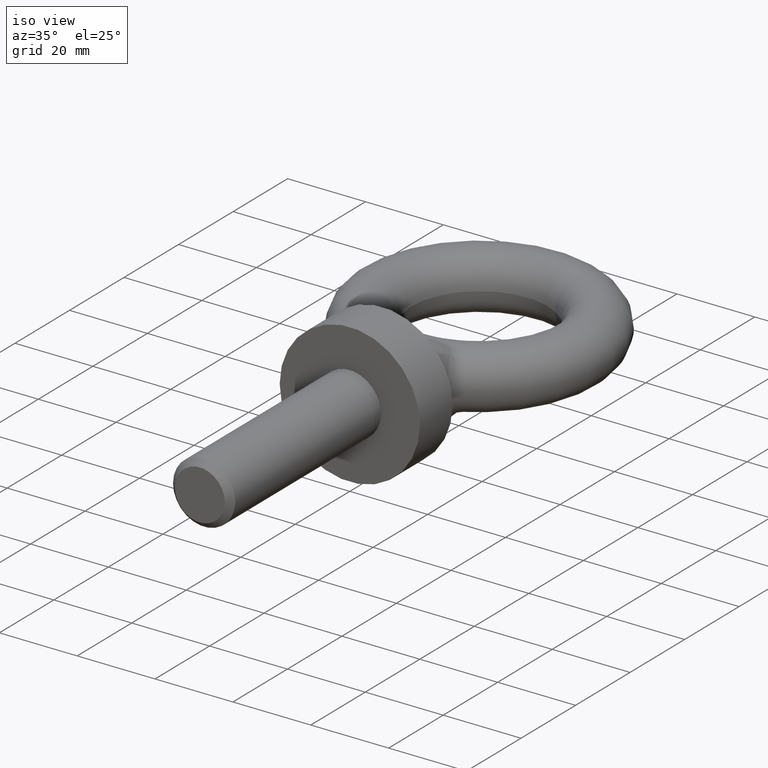
[diagram: clean part render]
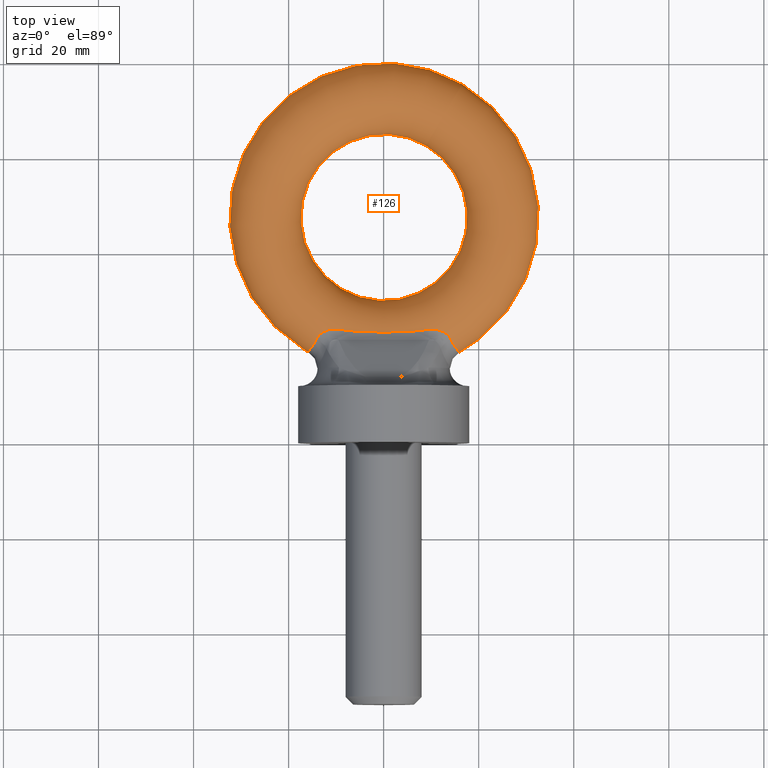
[diagram: tour spotlight — one face highlighted and labeled with its STEP entity id]
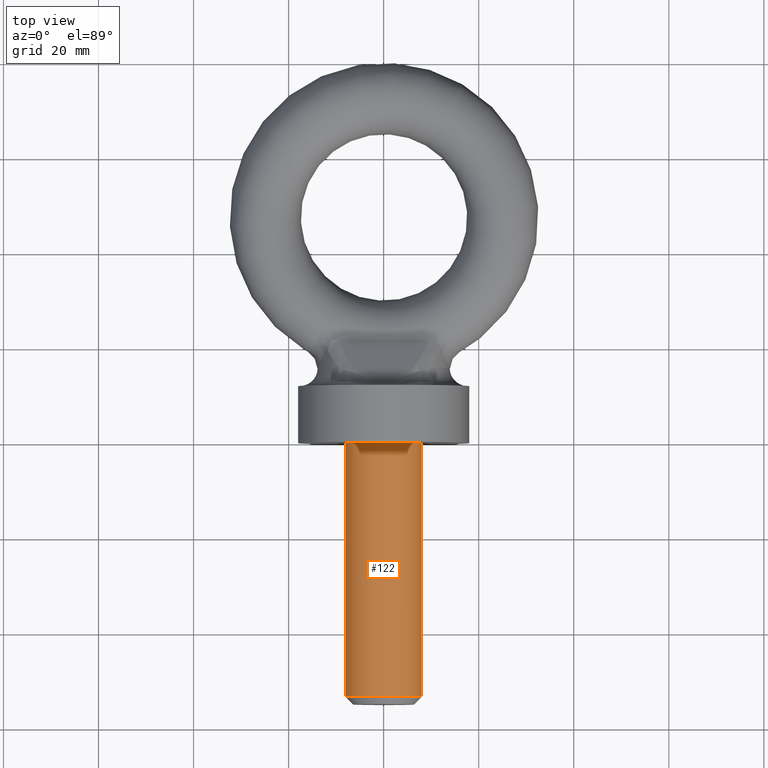
[diagram: tour spotlight — one face highlighted and labeled with its STEP entity id]
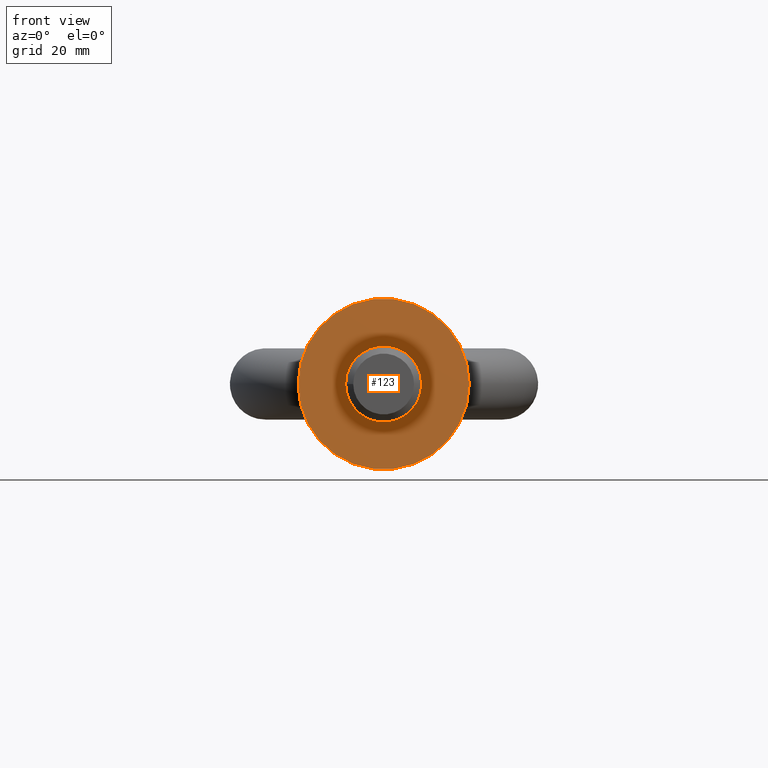
[diagram: tour spotlight — one face highlighted and labeled with its STEP entity id]
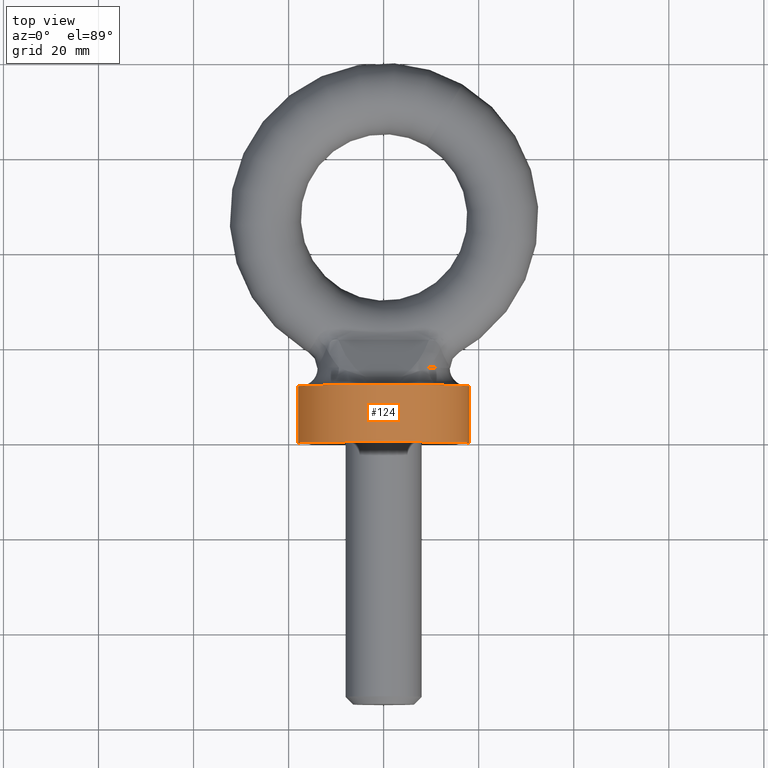
[diagram: tour spotlight — one face highlighted and labeled with its STEP entity id]
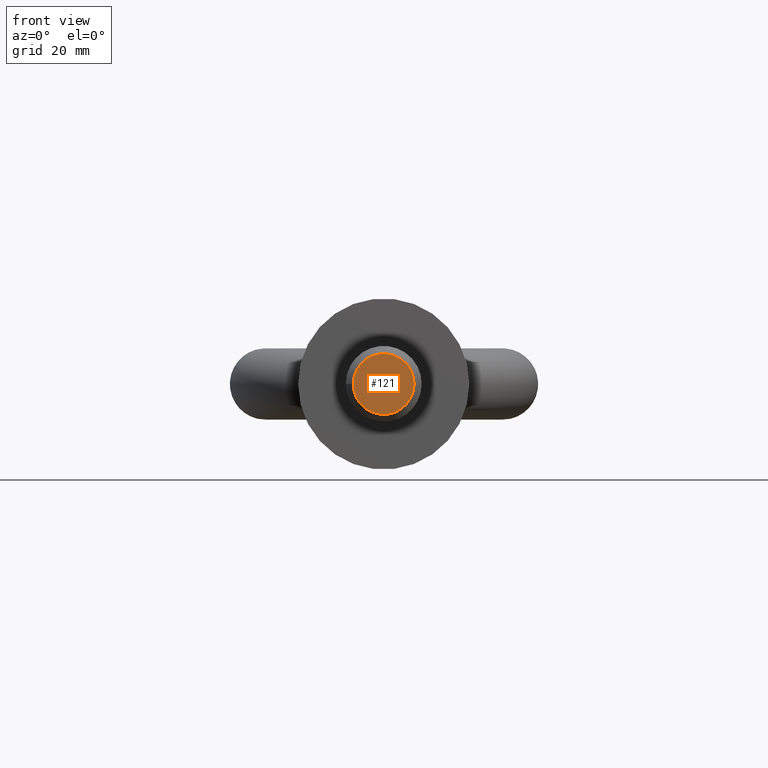
[diagram: tour spotlight — one face highlighted and labeled with its STEP entity id]
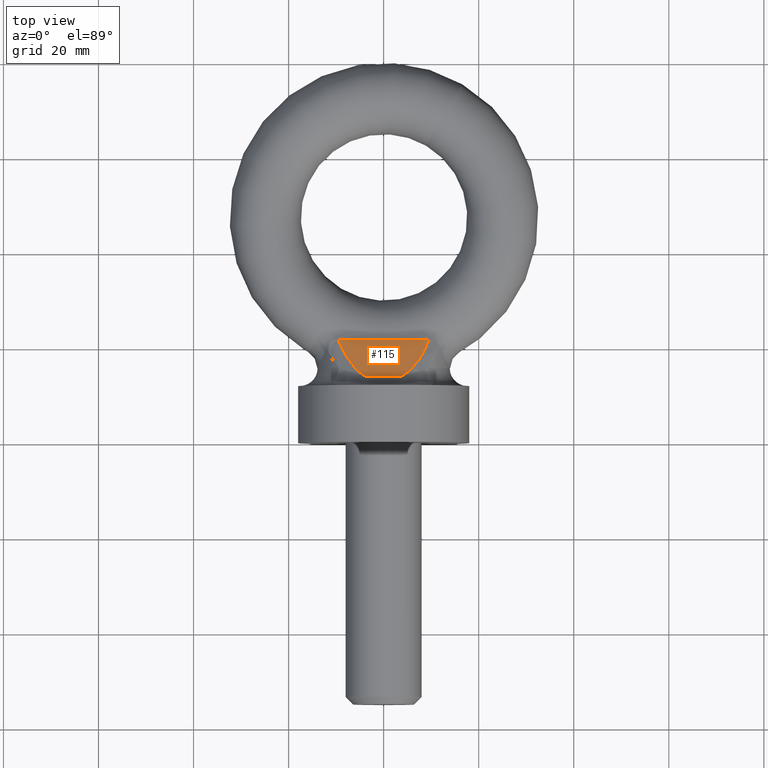
[diagram: tour spotlight — one face highlighted and labeled with its STEP entity id]
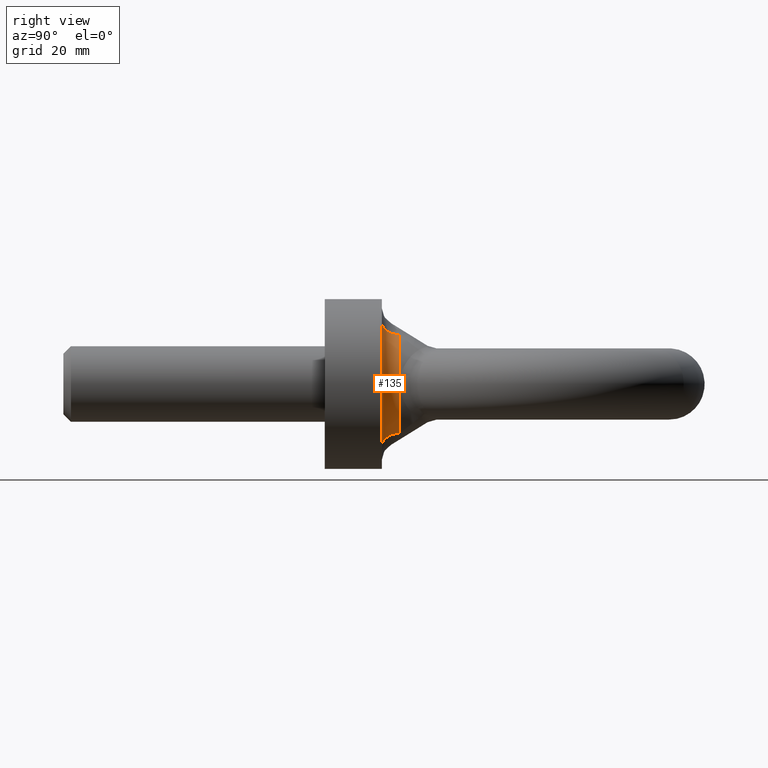
[diagram: tour spotlight — one face highlighted and labeled with its STEP entity id]
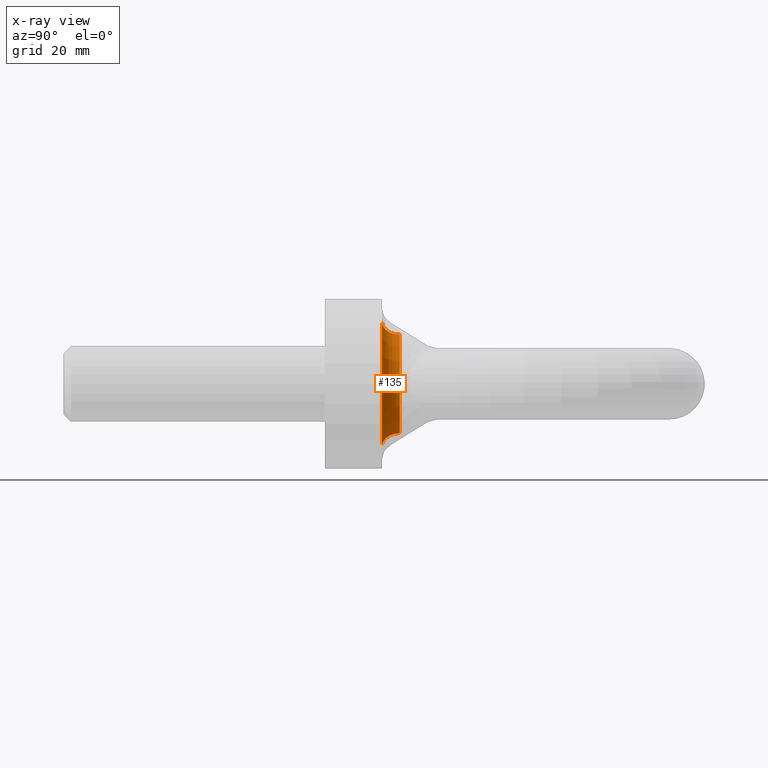
[diagram: x-ray of the same camera — body ghosted, this tour face saturated]
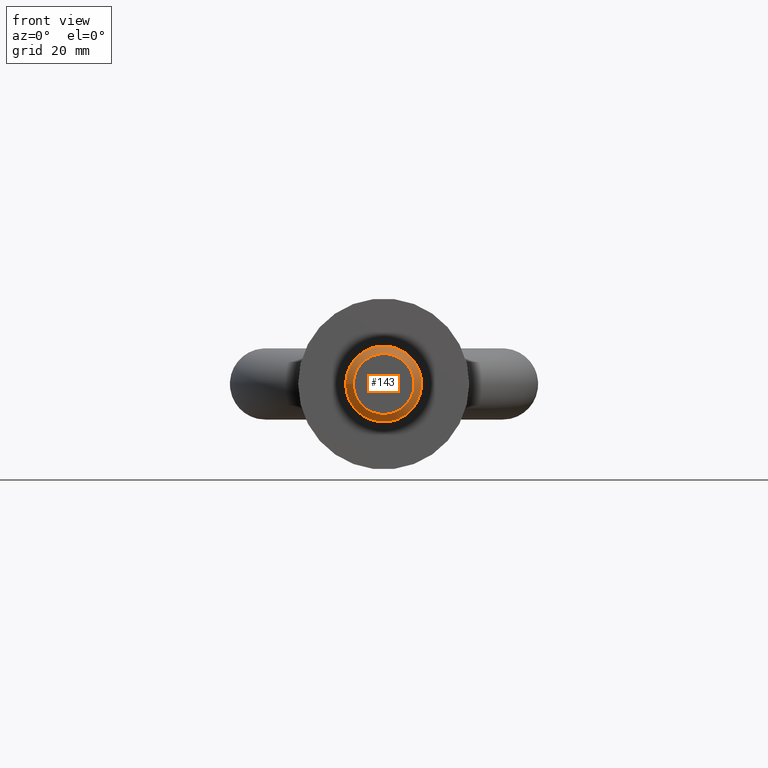
[diagram: tour spotlight — one face highlighted and labeled with its STEP entity id]
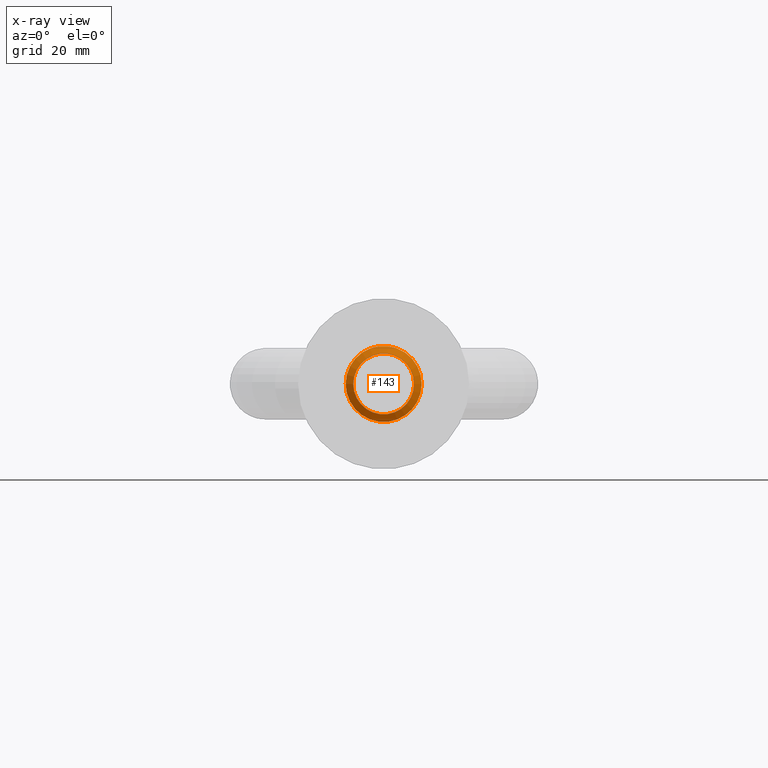
[diagram: x-ray of the same camera — body ghosted, this tour face saturated]
A machine part: a face-by-face anatomy tour. The part has 31 B-rep faces; the first image is the clean iso view, then the 8 largest visible faces are spotlighted one at a time (largest first), each with its STEP entity span.

Face 1 — top view, entity #126. In plain terms, the highlighted toroidal blend (fillet) surface has major radius 25 mm and minor (blend) radius 7.5 mm.
Definition (entity closure, byte-faithful):
#71=TOROIDAL_SURFACE('',#516,25.,7.5);
#126=ADVANCED_FACE('',(#159),#71,.T.);
#159=FACE_OUTER_BOUND('',#193,.T.);
#193=EDGE_LOOP('',(#309,#310,#311,#312,#313,#314,#315,#316));
#228=B_SPLINE_CURVE_WITH_KNOTS('',3,(#888,#889,#890,#891,#892,#893,#894,
#895,#896,#897),.UNSPECIFIED.,.F.,.F.,(4,2,2,2,4),(0.,0.25,0.5,0.75,1.),
 .UNSPECIFIED.);
#229=B_SPLINE_CURVE_WITH_KNOTS('',3,(#900,#901,#902,#903,#904,#905),
 .UNSPECIFIED.,.F.,.F.,(4,2,4),(0.,0.5,1.),.UNSPECIFIED.);
#230=B_SPLINE_CURVE_WITH_KNOTS('',3,(#907,#908,#909,#910,#911,#912),
 .UNSPECIFIED.,.F.,.F.,(4,2,4),(0.,0.5,1.),.UNSPECIFIED.);
#231=B_SPLINE_CURVE_WITH_KNOTS('',3,(#914,#915,#916,#917,#918,#919),
 .UNSPECIFIED.,.F.,.F.,(4,2,4),(0.,0.5,1.),.UNSPECIFIED.);
#232=B_SPLINE_CURVE_WITH_KNOTS('',3,(#921,#922,#923,#924,#925,#926,#927,
#928,#929,#930),.UNSPECIFIED.,.F.,.F.,(4,2,2,2,4),(0.,0.25,0.5,0.75,1.),
 .UNSPECIFIED.);
#233=B_SPLINE_CURVE_WITH_KNOTS('',3,(#932,#933,#934,#935,#936,#937),
 .UNSPECIFIED.,.F.,.F.,(4,2,4),(0.,0.5,1.),.UNSPECIFIED.);
#234=B_SPLINE_CURVE_WITH_KNOTS('',3,(#939,#940,#941,#942,#943,#944),
 .UNSPECIFIED.,.F.,.F.,(4,2,4),(0.,0.5,1.),.UNSPECIFIED.);
#235=B_SPLINE_CURVE_WITH_KNOTS('',3,(#946,#947,#948,#949,#950,#951),
 .UNSPECIFIED.,.F.,.F.,(4,2,4),(0.,0.5,1.),.UNSPECIFIED.);
#309=ORIENTED_EDGE('',*,*,#457,.T.);
#310=ORIENTED_EDGE('',*,*,#458,.T.);
#311=ORIENTED_EDGE('',*,*,#459,.T.);
#312=ORIENTED_EDGE('',*,*,#460,.T.);
#313=ORIENTED_EDGE('',*,*,#461,.T.);
#314=ORIENTED_EDGE('',*,*,#462,.T.);
#315=ORIENTED_EDGE('',*,*,#463,.T.);
#316=ORIENTED_EDGE('',*,*,#464,.T.);
#412=VERTEX_POINT('',#898);
#413=VERTEX_POINT('',#899);
#414=VERTEX_POINT('',#906);
#415=VERTEX_POINT('',#913);
#416=VERTEX_POINT('',#920);
#417=VERTEX_POINT('',#931);
#418=VERTEX_POINT('',#938);
#419=VERTEX_POINT('',#945);
#457=EDGE_CURVE('',#412,#413,#228,.T.);
#458=EDGE_CURVE('',#413,#414,#229,.T.);
#459=EDGE_CURVE('',#414,#415,#230,.T.);
#460=EDGE_CURVE('',#415,#416,#231,.T.);
#461=EDGE_CURVE('',#416,#417,#232,.T.);
#462=EDGE_CURVE('',#417,#418,#233,.T.);
#463=EDGE_CURVE('',#418,#419,#234,.T.);
#464=EDGE_CURVE('',#419,#412,#235,.T.);
#516=AXIS2_PLACEMENT_3D('',#952,#596,#597);
#596=DIRECTION('',(0.,0.,-1.));
#597=DIRECTION('',(-1.,0.,0.));
#888=CARTESIAN_POINT('',(14.1741981581779,21.709147065367,6.08171539126332));
#889=CARTESIAN_POINT('',(14.5745700498036,20.8251840573748,5.38336660200797));
#890=CARTESIAN_POINT('',(15.0470120869435,20.1871264750595,4.46115483519046));
#891=CARTESIAN_POINT('',(15.7196351807305,19.33390725905,2.3627708228722));
#892=CARTESIAN_POINT('',(15.9231731267235,19.1198969437814,1.17843229862993));
#893=CARTESIAN_POINT('',(15.9217322689945,19.1215040983683,-1.1917576663875));
#894=CARTESIAN_POINT('',(15.7175340120673,19.3363814928695,-2.37096689962735));
#895=CARTESIAN_POINT('',(15.0458441147134,20.1888000631012,-4.46314949314594));
#896=CARTESIAN_POINT('',(14.5749269617328,20.8243960476541,-5.382744058271));
#897=CARTESIAN_POINT('',(14.1741981581779,21.709147065367,-6.08171539126333));
#898=CARTESIAN_POINT('',(14.1741981581779,21.709147065367,6.08171539126332));
#899=CARTESIAN_POINT('',(14.1741981581779,21.709147065367,-6.08171539126333));
#900=CARTESIAN_POINT('',(14.1741981581779,21.709147065367,-6.08171539126333));
#901=CARTESIAN_POINT('',(13.8462006308091,22.4333179848831,-6.65382517446191));
#902=CARTESIAN_POINT('',(13.1561183968329,23.0876216519404,-7.04429471258201));
#903=CARTESIAN_POINT('',(11.4182521166751,23.8610765791052,-7.44129476190509));
#904=CARTESIAN_POINT('',(10.4128731674532,23.9553079612752,-7.4713744211244));
#905=CARTESIAN_POINT('',(9.44702474323144,23.8182976500273,-7.48553681631403));
#906=CARTESIAN_POINT('',(9.44702474323144,23.8182976500273,-7.48553681631403));
#907=CARTESIAN_POINT('',(9.44702474323144,23.8182976500273,-7.48553681631403));
#908=CARTESIAN_POINT('',(6.31566035846718,23.3740983344537,-7.53145253019585));
#909=CARTESIAN_POINT('',(3.15586701214751,23.273978392612,-7.45883713321665));
#910=CARTESIAN_POINT('',(-3.15590276835225,23.2785932351067,-7.4606273441795));
#911=CARTESIAN_POINT('',(-6.30666454584796,23.3846936540592,-7.53332851438874));
#912=CARTESIAN_POINT('',(-9.4406866331087,23.841466150167,-7.48306399448596));
#913=CARTESIAN_POINT('',(-9.4406866331087,23.841466150167,-7.48306399448595));
#914=CARTESIAN_POINT('',(-9.4406866331087,23.841466150167,-7.48306399448595));
#915=CARTESIAN_POINT('',(-10.4077832661947,23.9824170212115,-7.46755336737223));
#916=CARTESIAN_POINT('',(-11.4072264593007,23.8962099048915,-7.43575781001841));
#917=CARTESIAN_POINT('',(-13.1590486105127,23.1308894548663,-7.02833460287979));
#918=CARTESIAN_POINT('',(-13.8490616498596,22.4827055216511,-6.63286916154929));
#919=CARTESIAN_POINT('',(-14.1781571430811,21.7604461682516,-6.0543394285941));
#920=CARTESIAN_POINT('',(-14.1781571430811,21.7604461682516,-6.0543394285941));
#921=CARTESIAN_POINT('',(-14.1781571430811,21.7604461682516,-6.0543394285941));
#922=CARTESIAN_POINT('',(-14.5760395292031,20.8872215849663,-5.35488654840614));
#923=CARTESIAN_POINT('',(-15.0421680936798,20.2574277526973,-4.43589780659233));
#924=CARTESIAN_POINT('',(-15.7059003870864,19.4148178093601,-2.34609958098598));
#925=CARTESIAN_POINT('',(-15.9058672497549,19.2041899834389,-1.16937034862699));
#926=CARTESIAN_POINT('',(-15.9043913944488,19.20583902931,1.18315396113015));
#927=CARTESIAN_POINT('',(-15.7035390620442,19.4176210580347,2.35523186050061));
#928=CARTESIAN_POINT('',(-15.0411782778047,20.2588797725948,4.4373081646159));
#929=CARTESIAN_POINT('',(-14.5764116819438,20.8864048287257,5.35423232666771));
#930=CARTESIAN_POINT('',(-14.1781571430811,21.7604461682516,6.05433942859409));
#931=CARTESIAN_POINT('',(-14.1781571430811,21.7604461682516,6.05433942859409));
#932=CARTESIAN_POINT('',(-14.1781571430811,21.7604461682516,6.05433942859409));
#933=CARTESIAN_POINT('',(-13.8495981226209,22.4815281355193,6.6319260752726));
#934=CARTESIAN_POINT('',(-13.156797777666,23.1313686935583,7.02854297372453));
#935=CARTESIAN_POINT('',(-11.4134237119581,23.8940054498455,7.43463090366018));
#936=CARTESIAN_POINT('',(-10.4069983656833,23.9823026247727,7.46756595587553));
#937=CARTESIAN_POINT('',(-9.4406866331087,23.841466150167,7.48306399448595));
#938=CARTESIAN_POINT('',(-9.4406866331087,23.841466150167,7.48306399448595));
#939=CARTESIAN_POINT('',(-9.4406866331087,23.841466150167,7.48306399448595));
#940=CARTESIAN_POINT('',(-6.3119044736743,23.3854573547754,7.53324447463114));
#941=CARTESIAN_POINT('',(-3.15368082852669,23.2785402064312,7.46060678335677));
#942=CARTESIAN_POINT('',(3.15737732672285,23.2740287228629,7.45885664724795));
#943=CARTESIAN_POINT('',(6.31593149046603,23.3741367958506,7.5314485545425));
#944=CARTESIAN_POINT('',(9.44702474323144,23.8182976500273,7.48553681631403));
#945=CARTESIAN_POINT('',(9.44702474323144,23.8182976500273,7.48553681631403));
#946=CARTESIAN_POINT('',(9.44702474323144,23.8182976500273,7.48553681631403));
#947=CARTESIAN_POINT('',(10.41369411998,23.9554244173964,7.47136238336172));
#948=CARTESIAN_POINT('',(11.4116453768015,23.8635232005418,7.44249908977341));
#949=CARTESIAN_POINT('',(13.1588997284633,23.0868764870269,7.04396359807389));
#950=CARTESIAN_POINT('',(13.8456491240928,22.434535631641,6.65478714021328));
#951=CARTESIAN_POINT('',(14.1741981581779,21.709147065367,6.08171539126332));
#952=CARTESIAN_POINT('',(0.0837289890841773,47.5,0.));

Face 2 — top view, entity #122. In plain terms, the highlighted cylindrical surface (bore or boss wall) has radius 8 mm, axis along (0, 1, 0).
Definition (entity closure, byte-faithful):
#74=FACE_BOUND('',#185,.T.);
#75=FACE_BOUND('',#186,.T.);
#122=ADVANCED_FACE('',(#74,#75),#146,.T.);
#146=CYLINDRICAL_SURFACE('',#508,8.);
#185=EDGE_LOOP('',(#294));
#186=EDGE_LOOP('',(#295));
#239=CIRCLE('',#506,8.);
#240=CIRCLE('',#507,7.99999999999999);
#294=ORIENTED_EDGE('',*,*,#445,.T.);
#295=ORIENTED_EDGE('',*,*,#446,.F.);
#400=VERTEX_POINT('',#849);
#401=VERTEX_POINT('',#851);
#445=EDGE_CURVE('',#400,#400,#239,.T.);
#446=EDGE_CURVE('',#401,#401,#240,.T.);
#506=AXIS2_PLACEMENT_3D('',#848,#574,#575);
#507=AXIS2_PLACEMENT_3D('',#850,#576,#577);
#508=AXIS2_PLACEMENT_3D('',#852,#578,#579);
#574=DIRECTION('',(2.18673743221666E-18,1.,0.));
#575=DIRECTION('',(-1.,0.,0.));
#576=DIRECTION('',(2.18673743221666E-18,1.,0.));
#577=DIRECTION('',(-1.,2.18673743221666E-18,0.));
#578=DIRECTION('',(2.18673743221666E-18,1.,0.));
#579=DIRECTION('',(-1.,0.,0.));
#848=CARTESIAN_POINT('',(-1.65973371105244E-16,-53.4,0.));
#849=CARTESIAN_POINT('',(-8.,-53.4,0.));
#850=CARTESIAN_POINT('',(-4.92015922248747E-17,0.,0.));
#851=CARTESIAN_POINT('',(-7.99999999999999,1.74938994577332E-17,0.));
#852=CARTESIAN_POINT('',(-1.69472150996791E-16,-55.,0.));

Face 3 — front view, entity #123. In plain terms, the highlighted planar face has unit normal (0, 1, 0).
Definition (entity closure, byte-faithful):
#76=FACE_BOUND('',#187,.T.);
#77=FACE_BOUND('',#188,.T.);
#103=PLANE('',#510);
#123=ADVANCED_FACE('',(#76,#77),#103,.F.);
#187=EDGE_LOOP('',(#296));
#188=EDGE_LOOP('',(#297));
#240=CIRCLE('',#507,7.99999999999999);
#241=CIRCLE('',#509,18.);
#296=ORIENTED_EDGE('',*,*,#447,.F.);
#297=ORIENTED_EDGE('',*,*,#446,.T.);
#401=VERTEX_POINT('',#851);
#402=VERTEX_POINT('',#854);
#446=EDGE_CURVE('',#401,#401,#240,.T.);
#447=EDGE_CURVE('',#402,#402,#241,.T.);
#507=AXIS2_PLACEMENT_3D('',#850,#576,#577);
#509=AXIS2_PLACEMENT_3D('',#853,#580,#581);
#510=AXIS2_PLACEMENT_3D('',#855,#582,#583);
#576=DIRECTION('',(2.18673743221666E-18,1.,0.));
#577=DIRECTION('',(-1.,2.18673743221666E-18,0.));
#580=DIRECTION('',(2.18673743221666E-18,1.,0.));
#581=DIRECTION('',(-1.,2.18673743221666E-18,0.));
#582=DIRECTION('',(2.18673743221666E-18,1.,0.));
#583=DIRECTION('',(-1.,2.18673743221666E-18,0.));
#850=CARTESIAN_POINT('',(-4.92015922248747E-17,0.,0.));
#851=CARTESIAN_POINT('',(-7.99999999999999,1.74938994577332E-17,0.));
#853=CARTESIAN_POINT('',(-4.92015922248747E-17,0.,0.));
#854=CARTESIAN_POINT('',(-18.,3.93612737798998E-17,0.));
#855=CARTESIAN_POINT('',(7.99999999999999,6.84489426692128E-16,0.));

Face 4 — top view, entity #124. In plain terms, the highlighted cylindrical surface (bore or boss wall) has radius 18 mm, axis along (0, 1, 0).
Definition (entity closure, byte-faithful):
#78=FACE_BOUND('',#189,.T.);
#79=FACE_BOUND('',#190,.T.);
#124=ADVANCED_FACE('',(#78,#79),#147,.T.);
#147=CYLINDRICAL_SURFACE('',#512,18.);
#189=EDGE_LOOP('',(#298));
#190=EDGE_LOOP('',(#299));
#241=CIRCLE('',#509,18.);
#242=CIRCLE('',#511,18.);
#298=ORIENTED_EDGE('',*,*,#448,.F.);
#299=ORIENTED_EDGE('',*,*,#447,.T.);
#402=VERTEX_POINT('',#854);
#403=VERTEX_POINT('',#857);
#447=EDGE_CURVE('',#402,#402,#241,.T.);
#448=EDGE_CURVE('',#403,#403,#242,.T.);
#509=AXIS2_PLACEMENT_3D('',#853,#580,#581);
#511=AXIS2_PLACEMENT_3D('',#856,#584,#585);
#512=AXIS2_PLACEMENT_3D('',#858,#586,#587);
#580=DIRECTION('',(2.18673743221666E-18,1.,0.));
#581=DIRECTION('',(-1.,2.18673743221666E-18,0.));
#584=DIRECTION('',(2.18673743221666E-18,1.,0.));
#585=DIRECTION('',(-1.,0.,0.));
#586=DIRECTION('',(2.18673743221666E-18,1.,0.));
#587=DIRECTION('',(-1.,0.,0.));
#853=CARTESIAN_POINT('',(-4.92015922248747E-17,0.,0.));
#854=CARTESIAN_POINT('',(-18.,3.93612737798998E-17,0.));
#856=CARTESIAN_POINT('',(-2.29607430382749E-17,12.,0.));
#857=CARTESIAN_POINT('',(-18.,12.,0.));
#858=CARTESIAN_POINT('',(-1.69472150996791E-16,-55.,0.));

Face 5 — front view, entity #121. In plain terms, the highlighted planar face has unit normal (0, 1, 0).
Definition (entity closure, byte-faithful):
#102=PLANE('',#505);
#121=ADVANCED_FACE('',(#158),#102,.F.);
#158=FACE_OUTER_BOUND('',#184,.T.);
#184=EDGE_LOOP('',(#293));
#238=CIRCLE('',#504,6.4);
#293=ORIENTED_EDGE('',*,*,#444,.T.);
#399=VERTEX_POINT('',#846);
#444=EDGE_CURVE('',#399,#399,#238,.T.);
#504=AXIS2_PLACEMENT_3D('',#845,#570,#571);
#505=AXIS2_PLACEMENT_3D('',#847,#572,#573);
#570=DIRECTION('',(-2.18673743221666E-18,-1.,0.));
#571=DIRECTION('',(-1.,0.,0.));
#572=DIRECTION('',(2.18673743221666E-18,1.,0.));
#573=DIRECTION('',(-1.,0.,0.));
#845=CARTESIAN_POINT('',(-1.69472150996791E-16,-55.,0.));
#846=CARTESIAN_POINT('',(-6.4,-55.,0.));
#847=CARTESIAN_POINT('',(1.912728238983E-35,-55.,0.));

Face 6 — top view, entity #115. In plain terms, the highlighted planar face has unit normal (0, 0.5264, 0.8503).
Definition (entity closure, byte-faithful):
#100=PLANE('',#500);
#105=LINE('',#680,#109);
#109=VECTOR('',#558,1.);
#115=ADVANCED_FACE('',(#152),#100,.T.);
#152=FACE_OUTER_BOUND('',#178,.T.);
#178=EDGE_LOOP('',(#269,#270,#271,#272));
#214=B_SPLINE_CURVE_WITH_KNOTS('',3,(#684,#685,#686,#687,#688,#689),
 .UNSPECIFIED.,.F.,.F.,(4,2,4),(0.,0.5,1.),.UNSPECIFIED.);
#269=ORIENTED_EDGE('',*,*,#428,.T.);
#270=ORIENTED_EDGE('',*,*,#429,.T.);
#271=ORIENTED_EDGE('',*,*,#430,.T.);
#272=ORIENTED_EDGE('',*,*,#431,.T.);
#391=VERTEX_POINT('',#678);
#392=VERTEX_POINT('',#679);
#393=VERTEX_POINT('',#681);
#394=VERTEX_POINT('',#683);
#428=EDGE_CURVE('',#391,#392,#485,.T.);
#429=EDGE_CURVE('',#392,#393,#105,.T.);
#430=EDGE_CURVE('',#393,#394,#486,.T.);
#431=EDGE_CURVE('',#394,#391,#214,.T.);
#485=ELLIPSE('',#498,20.8984583673097,11.);
#486=ELLIPSE('',#499,20.8984583673097,11.);
#498=AXIS2_PLACEMENT_3D('',#677,#556,#557);
#499=AXIS2_PLACEMENT_3D('',#682,#559,#560);
#500=AXIS2_PLACEMENT_3D('',#690,#561,#562);
#556=DIRECTION('',(-1.92592994438724E-34,0.526354614616296,0.850265146687862));
#557=DIRECTION('',(2.57183002353432E-18,0.850265146687862,-0.526354614616296));
#558=DIRECTION('',(1.,-2.18673743221666E-18,1.35369460089603E-18));
#559=DIRECTION('',(-1.92592994438724E-34,0.526354614616296,0.850265146687862));
#560=DIRECTION('',(2.57183002353432E-18,0.850265146687862,-0.526354614616296));
#561=DIRECTION('',(0.,0.526354614616296,0.850265146687862));
#562=DIRECTION('',(0.,-0.850265146687862,0.526354614616296));
#677=CARTESIAN_POINT('',(1.40296810839585E-17,30.4948689045127,2.55079544006359));
#678=CARTESIAN_POINT('',(-9.53474778514424,21.6339895750278,8.03610169164945));
#679=CARTESIAN_POINT('',(-3.72616664404324,13.7761701951889,12.900466069645));
#680=CARTESIAN_POINT('',(36.,13.7761701951889,12.900466069645));
#681=CARTESIAN_POINT('',(3.72616664404323,13.7761701951889,12.900466069645));
#682=CARTESIAN_POINT('',(1.40296810839585E-17,30.4948689045127,2.55079544006359));
#683=CARTESIAN_POINT('',(9.53261291634186,21.6279977375213,8.03981092439157));
#684=CARTESIAN_POINT('',(9.53261291634185,21.6279977375213,8.03981092439157));
#685=CARTESIAN_POINT('',(6.35467236471377,21.5206353919358,8.10627332880162));
#686=CARTESIAN_POINT('',(3.17685331787687,21.6928058066125,7.99969164352558));
#687=CARTESIAN_POINT('',(-3.17893643571902,21.6882392700004,8.00251854714259));
#688=CARTESIAN_POINT('',(-6.35690485638315,21.5167616867039,8.10867133680232));
#689=CARTESIAN_POINT('',(-9.53474778514425,21.6339895750278,8.03610169164945));
#690=CARTESIAN_POINT('',(36.,12.,14.));

Face 7 — right view, entity #135. An x-ray twin of the same camera follows (body ghosted, this face saturated) — the face is partly hidden behind the body. In plain terms, the highlighted toroidal blend (fillet) surface has major radius 17.75 mm and minor (blend) radius 3.75 mm.
Definition (entity closure, byte-faithful):
#72=TOROIDAL_SURFACE('',#527,17.75,3.75);
#135=ADVANCED_FACE('',(#168),#72,.F.);
#168=FACE_OUTER_BOUND('',#202,.T.);
#202=EDGE_LOOP('',(#349,#350,#351,#352));
#236=CIRCLE('',#491,14.);
#243=CIRCLE('',#513,17.75);
#253=CIRCLE('',#525,3.75);
#254=CIRCLE('',#526,3.75);
#349=ORIENTED_EDGE('',*,*,#473,.F.);
#350=ORIENTED_EDGE('',*,*,#449,.F.);
#351=ORIENTED_EDGE('',*,*,#474,.F.);
#352=ORIENTED_EDGE('',*,*,#421,.F.);
#384=VERTEX_POINT('',#643);
#385=VERTEX_POINT('',#645);
#404=VERTEX_POINT('',#860);
#405=VERTEX_POINT('',#861);
#421=EDGE_CURVE('',#384,#385,#236,.T.);
#449=EDGE_CURVE('',#404,#405,#243,.T.);
#473=EDGE_CURVE('',#405,#384,#253,.T.);
#474=EDGE_CURVE('',#385,#404,#254,.T.);
#491=AXIS2_PLACEMENT_3D('',#644,#542,#543);
#513=AXIS2_PLACEMENT_3D('',#859,#588,#589);
#525=AXIS2_PLACEMENT_3D('',#1129,#614,#615);
#526=AXIS2_PLACEMENT_3D('',#1130,#616,#617);
#527=AXIS2_PLACEMENT_3D('',#1131,#618,#619);
#542=DIRECTION('',(2.18673743221666E-18,1.,0.));
#543=DIRECTION('',(1.,0.,0.));
#588=DIRECTION('',(-2.18673743221666E-18,-1.,0.));
#589=DIRECTION('',(1.,0.,0.));
#614=DIRECTION('',(0.740932752331728,0.,-0.671579225797024));
#615=DIRECTION('',(-0.671579225797024,0.,-0.740932752331728));
#616=DIRECTION('',(0.740932752331729,0.,0.671579225797023));
#617=DIRECTION('',(0.671579225797023,0.,-0.740932752331729));
#618=DIRECTION('',(-2.18673743221666E-18,-1.,0.));
#619=DIRECTION('',(1.,0.,0.));
#643=CARTESIAN_POINT('',(9.40210916115834,15.75,10.3730585326442));
#644=CARTESIAN_POINT('',(-1.47604776674624E-17,15.75,0.));
#645=CARTESIAN_POINT('',(9.40210916115833,15.75,-10.3730585326442));
#859=CARTESIAN_POINT('',(-2.29607430382749E-17,12.,0.));
#860=CARTESIAN_POINT('',(11.9205312578972,12.,-13.1515563538882));
#861=CARTESIAN_POINT('',(11.9205312578972,12.,13.1515563538882));
#1129=CARTESIAN_POINT('',(11.9205312578972,15.75,13.1515563538882));
#1130=CARTESIAN_POINT('',(11.9205312578972,15.75,-13.1515563538882));
#1131=CARTESIAN_POINT('',(-1.47604776674624E-17,15.75,0.));

Face 8 — front view, entity #143. An x-ray twin of the same camera follows (body ghosted, this face saturated) — the face is partly hidden behind the body. In plain terms, the highlighted conical surface has half-angle 45 deg.
Definition (entity closure, byte-faithful):
#70=CONICAL_SURFACE('',#537,8.,45.);
#82=FACE_BOUND('',#210,.T.);
#83=FACE_BOUND('',#211,.T.);
#143=ADVANCED_FACE('',(#82,#83),#70,.T.);
#210=EDGE_LOOP('',(#381));
#211=EDGE_LOOP('',(#382));
#238=CIRCLE('',#504,6.4);
#239=CIRCLE('',#506,8.);
#381=ORIENTED_EDGE('',*,*,#444,.F.);
#382=ORIENTED_EDGE('',*,*,#445,.F.);
#399=VERTEX_POINT('',#846);
#400=VERTEX_POINT('',#849);
#444=EDGE_CURVE('',#399,#399,#238,.T.);
#445=EDGE_CURVE('',#400,#400,#239,.T.);
#504=AXIS2_PLACEMENT_3D('',#845,#570,#571);
#506=AXIS2_PLACEMENT_3D('',#848,#574,#575);
#537=AXIS2_PLACEMENT_3D('',#1213,#638,#639);
#570=DIRECTION('',(-2.18673743221666E-18,-1.,0.));
#571=DIRECTION('',(-1.,0.,0.));
#574=DIRECTION('',(2.18673743221666E-18,1.,0.));
#575=DIRECTION('',(-1.,0.,0.));
#638=DIRECTION('',(2.18673743221666E-18,1.,0.));
#639=DIRECTION('',(-1.,0.,0.));
#845=CARTESIAN_POINT('',(-1.69472150996791E-16,-55.,0.));
#846=CARTESIAN_POINT('',(-6.4,-55.,0.));
#848=CARTESIAN_POINT('',(-1.65973371105244E-16,-53.4,0.));
#849=CARTESIAN_POINT('',(-8.,-53.4,0.));
#1213=CARTESIAN_POINT('',(-1.65973371105244E-16,-53.4,0.));